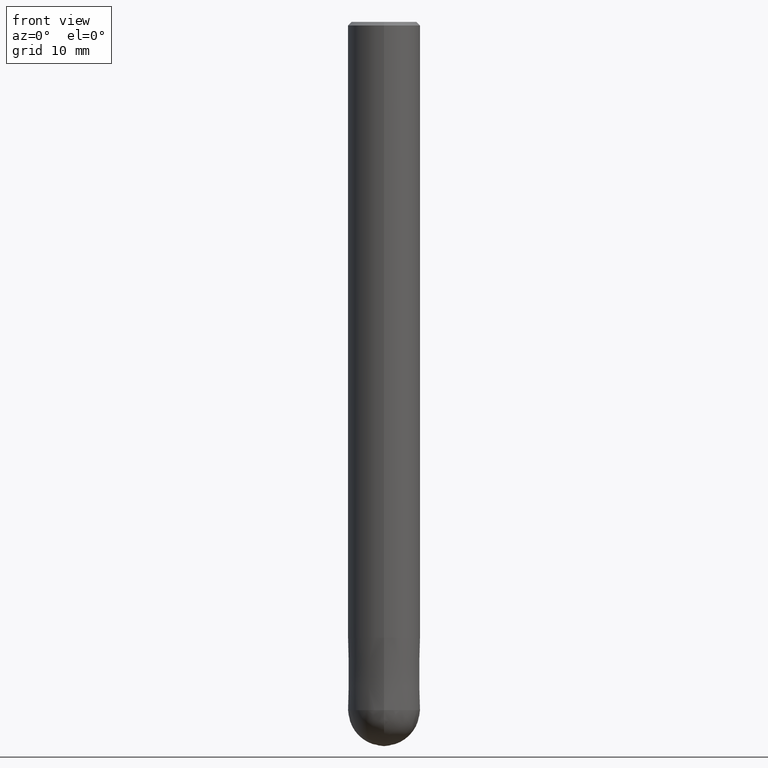
[diagram: clean part render]
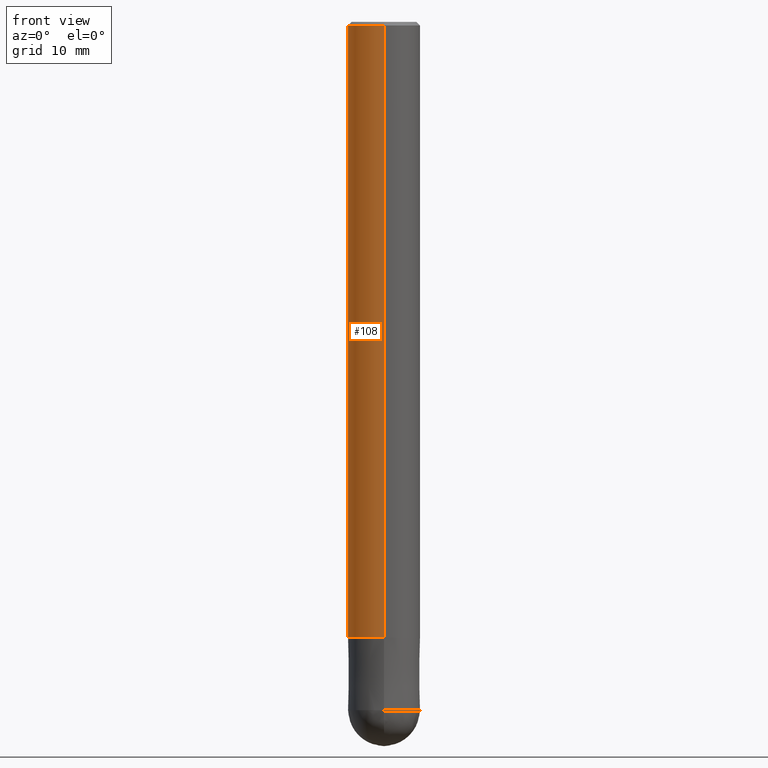
[diagram: same view with one face highlighted and labeled with its STEP entity id]
A machine part, front view. The second image highlights one B-rep face of the part: STEP entity #108.
In plain terms, the highlighted cylindrical surface (edge-blend (fillet) strip) has radius 5 mm, axis along (-0, -0, 1).
Its self-contained STEP definition (entity closure, byte-faithful):
#66=VERTEX_POINT('',#159);
#68=EDGE_CURVE('',#134,#118,#161,.T.);
#90=EDGE_CURVE('',#66,#134,#187,.T.);
#104=EDGE_CURVE('',#66,#106,#205,.T.);
#106=VERTEX_POINT('',#207);
#108=ADVANCED_FACE('',(#209),#210,.T.);
#118=VERTEX_POINT('',#221);
#124=EDGE_CURVE('',#118,#106,#227,.T.);
#134=VERTEX_POINT('',#237);
#159=CARTESIAN_POINT('',(6.12303176911189E-016,-5.0,-85.0));
#161=CIRCLE('',#256,5.0);
#187=LINE('',#290,#291);
#205=CIRCLE('',#312,5.0);
#207=CARTESIAN_POINT('',(0.0,5.0,-85.0));
#209=FACE_OUTER_BOUND('',#316,.T.);
#210=CYLINDRICAL_SURFACE('',#317,5.0);
#221=CARTESIAN_POINT('',(0.0,5.0,-0.5));
#227=LINE('',#339,#340);
#237=CARTESIAN_POINT('',(6.12303176911189E-016,-5.0,-0.5));
#256=AXIS2_PLACEMENT_3D('',#365,#366,#367);
#290=CARTESIAN_POINT('',(6.12303176911189E-016,-5.0,-42.75));
#291=VECTOR('',#403,1.0);
#312=AXIS2_PLACEMENT_3D('',#438,#439,#440);
#316=EDGE_LOOP('',(#442,#443,#444,#445));
#317=AXIS2_PLACEMENT_3D('',#446,#447,#448);
#339=CARTESIAN_POINT('',(-6.12303176911189E-016,5.0,-42.75));
#340=VECTOR('',#464,1.0);
#365=CARTESIAN_POINT('',(0.0,0.0,-0.5));
#366=DIRECTION('',(0.0,0.0,-1.0));
#367=DIRECTION('',(0.0,1.0,0.0));
#403=DIRECTION('',(-0.0,-0.0,1.0));
#438=CARTESIAN_POINT('',(0.0,0.0,-85.0));
#439=DIRECTION('',(0.0,0.0,-1.0));
#440=DIRECTION('',(0.0,1.0,0.0));
#442=ORIENTED_EDGE('',*,*,#124,.T.);
#443=ORIENTED_EDGE('',*,*,#104,.F.);
#444=ORIENTED_EDGE('',*,*,#90,.T.);
#445=ORIENTED_EDGE('',*,*,#68,.T.);
#446=CARTESIAN_POINT('',(0.0,0.0,-42.75));
#447=DIRECTION('',(-0.0,-0.0,1.0));
#448=DIRECTION('',(0.0,1.0,0.0));
#464=DIRECTION('',(0.0,0.0,-1.0));